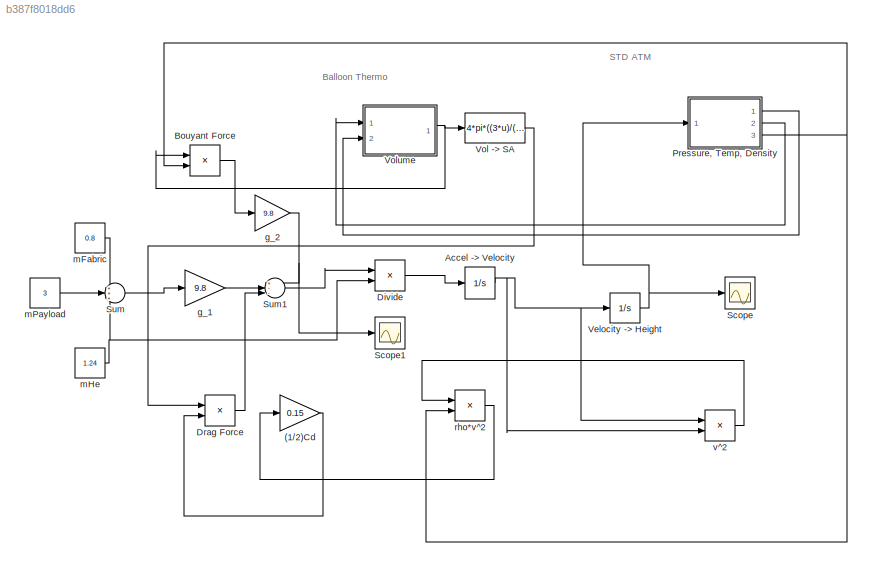
MODEL slx_b387f8018dd6
KIND model
CONFIG AbsTol = auto
CONFIG FixedStep = auto
CONFIG MaxStep = auto
CONFIG MinStep = auto
CONFIG RelTol = 1e-3
CONFIG SampleTimeConstraint = Unconstrained
CONFIG Solver = VariableStepAuto
CONFIG SolverMode = Auto
CONFIG SolverName = VariableStepAuto
CONFIG StartTime = 0.0
CONFIG StopTime = 7200
BLOCK [Gain] (1//2)Cd
  Gain = 0.15
  OutDataTypeStr = Inherit: Inherit via internal rule
  ParamDataTypeStr = Inherit: Inherit via internal rule
  SaturateOnIntegerOverflow = off
BLOCK [Integrator] Accel -> Velocity
  Ports = [1, 1]
BLOCK [Product] Bouyant Force
  InputSameDT = off
  OutDataTypeStr = Inherit: Inherit via internal rule
  Ports = [2, 1]
  RndMeth = Floor
  SaturateOnIntegerOverflow = off
BLOCK [Product] Divide
  InputSameDT = off
  Inputs = */
  OutDataTypeStr = Inherit: Inherit via internal rule
  Ports = [2, 1]
  RndMeth = Floor
  SaturateOnIntegerOverflow = off
BLOCK [Product] Drag Force
  InputSameDT = off
  OutDataTypeStr = Inherit: Inherit via internal rule
  Ports = [2, 1]
  RndMeth = Floor
  SaturateOnIntegerOverflow = off
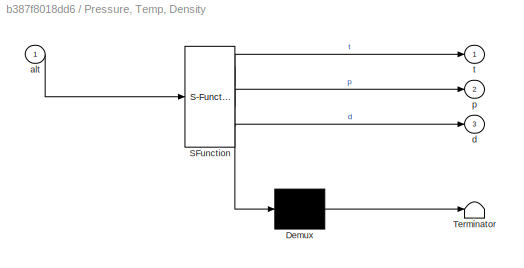
BLOCK [SubSystem] Pressure, Temp, Density
  ErrorFcn = Stateflow.Translate.translate
  PermitHierarchicalResolution = ExplicitOnly
  Ports = [1, 3]
  RequestExecContextInheritance = off
  SFBlockType = MATLAB Function
  TreatAsAtomicUnit = on
  Variant = off
BLOCK [Demux] Pressure, Temp, Density/ Demux 
  Outputs = 1
  Ports = [1, 1]
BLOCK [S-Function] Pressure, Temp, Density/ SFunction 
  EnableBusSupport = on
  FunctionName = sf_sfun
  PortCounts = [1 4]
  Ports = [1, 4]
  SFunctionDeploymentMode = off
  Tag = Stateflow S-Function AltControlSimulink_4_16_17 1
BLOCK [Terminator] Pressure, Temp, Density/ Terminator 
BLOCK [Inport] Pressure, Temp, Density/alt
  IconDisplay = Port number
BLOCK [Outport] Pressure, Temp, Density/d
  IconDisplay = Port number
  Port = 3
BLOCK [Outport] Pressure, Temp, Density/p
  IconDisplay = Port number
  Port = 2
BLOCK [Outport] Pressure, Temp, Density/t
  IconDisplay = Port number
BLOCK [Scope] Scope
  Ports = [1]
  ScopeSpecificationString = Simulink.scopes.TimeScopeBlockCfg('CurrentConfiguration', extmgr.ConfigurationSet(extmgr.Configuration('Core','General UI',true),extmgr.Configuration('Core','Source UI',true),extmgr.Configuration('Sources','WiredSimulink',true,'DataLoggingSaveFormat','Array','DataLoggingDecimation','1','DataLoggingDecimateData',true),extmgr.Configuration('Visuals','Time Domain',true,'SerializedDisplays',{struct('M...<+1455ch>
BLOCK [Scope] Scope1
  Ports = [1]
  ScopeSpecificationString = Simulink.scopes.TimeScopeBlockCfg('CurrentConfiguration', extmgr.ConfigurationSet(extmgr.Configuration('Core','General UI',true),extmgr.Configuration('Core','Source UI',true),extmgr.Configuration('Sources','WiredSimulink',true,'DataLoggingVariableName','ScopeData1'),extmgr.Configuration('Visuals','Time Domain',true,'SerializedDisplays',{struct('MinYLimReal','87.92777','MaxYLimReal','87.94037','YLa...<+1421ch>
BLOCK [Sum] Sum
  IconShape = round
  InputSameDT = off
  Inputs = +++
  OutDataTypeStr = Inherit: Inherit via internal rule
  Ports = [3, 1]
  SaturateOnIntegerOverflow = off
BLOCK [Sum] Sum1
  IconShape = round
  InputSameDT = off
  Inputs = +--
  OutDataTypeStr = Inherit: Inherit via internal rule
  Ports = [3, 1]
  SaturateOnIntegerOverflow = off
BLOCK [Integrator] Velocity -> Height
  Ports = [1, 1]
BLOCK [Fcn] Vol -> SA
  Expr = 4*pi*((3*u)/(4*pi))^(2/3)
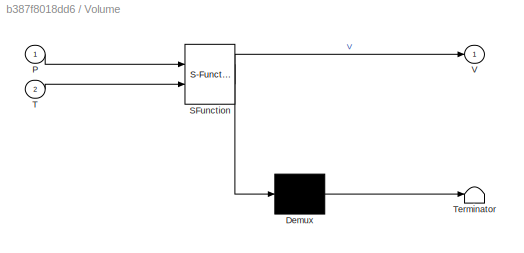
BLOCK [SubSystem] Volume
  ErrorFcn = Stateflow.Translate.translate
  PermitHierarchicalResolution = ExplicitOnly
  Ports = [2, 1]
  RequestExecContextInheritance = off
  SFBlockType = MATLAB Function
  TreatAsAtomicUnit = on
  Variant = off
BLOCK [Demux] Volume/ Demux 
  Outputs = 1
  Ports = [1, 1]
BLOCK [S-Function] Volume/ SFunction 
  EnableBusSupport = on
  FunctionName = sf_sfun
  PortCounts = [2 2]
  Ports = [2, 2]
  SFunctionDeploymentMode = off
  Tag = Stateflow S-Function AltControlSimulink_4_16_17 2
BLOCK [Terminator] Volume/ Terminator 
BLOCK [Inport] Volume/P
  IconDisplay = Port number
BLOCK [Inport] Volume/T
  IconDisplay = Port number
  Port = 2
BLOCK [Outport] Volume/V
  IconDisplay = Port number
BLOCK [Gain] g_1 
  Gain = 9.8
  OutDataTypeStr = Inherit: Inherit via internal rule
  ParamDataTypeStr = Inherit: Inherit via internal rule
  SaturateOnIntegerOverflow = off
BLOCK [Gain] g_2
  Gain = 9.8
  OutDataTypeStr = Inherit: Inherit via internal rule
  ParamDataTypeStr = Inherit: Inherit via internal rule
  SaturateOnIntegerOverflow = off
BLOCK [Constant] mFabric
  Value = 0.8
BLOCK [Constant] mHe
  Value = 1.24
BLOCK [Constant] mPayload
  Value = 3
BLOCK [Product] rho*v^2
  InputSameDT = off
  OutDataTypeStr = Inherit: Inherit via internal rule
  Ports = [2, 1]
  RndMeth = Floor
  SaturateOnIntegerOverflow = off
BLOCK [Product] v^2
  InputSameDT = off
  OutDataTypeStr = Inherit: Inherit via internal rule
  Ports = [2, 1]
  RndMeth = Floor
  SaturateOnIntegerOverflow = off
ANNOTATION (root): Balloon Thermo
ANNOTATION (root): STD ATM
LINE (1//2)Cd:1 -> Drag Force:2
NET Accel -> Velocity:1 -> Velocity -> Height:1, v^2:1, v^2:2
LINE Bouyant Force:1 -> g_2:1
LINE Divide:1 -> Accel -> Velocity:1
LINE Drag Force:1 -> Sum1:3
LINE Pressure, Temp, Density:1 -> Volume:2
LINE Pressure, Temp, Density:2 -> Volume:1
NET Pressure, Temp, Density:3 -> Bouyant Force:2, rho*v^2:2
LINE Sum1:1 -> Divide:1
LINE Sum:1 -> g_1 :1
NET Velocity -> Height:1 -> Pressure, Temp, Density:1, Scope:1
LINE Vol -> SA:1 -> Drag Force:1
NET Volume:1 -> Bouyant Force:1, Vol -> SA:1
LINE g_1 :1 -> Sum1:2
NET g_2:1 -> Scope1:1, Sum1:1
LINE mFabric:1 -> Sum:1
NET mHe:1 -> Divide:2, Sum:3
LINE mPayload:1 -> Sum:2
LINE rho*v^2:1 -> (1//2)Cd:1
LINE v^2:1 -> rho*v^2:1
note: NET lines group one-source signal fan-out (src -> all destinations, sorted); 1:1 wires keep LINE
CHART Pressure, Temp, Density states=1 transitions=1
  STATE_LABEL 'eML_blk_kernel()'
  STATE_LABEL 'SCRIPT:\nfunction [t,p,d] = getTPD(alt)\n    if alt <= 11000\n        t = 15.04 - 0.00649*alt;\n        p = 101.29 * ((t + 273.1)/288.08)^5.256;\n    elseif (11000 < alt) && (alt <= 25000)\n        t = -56.46;\n        p = 22.65 * exp(1.73 - 0.000157*alt);\n    else\n        t = -131.21 + 0.00299*alt;\n        p = 2.488 * ((t + 273.1)/216.6)^(-11.38);\n    end\n    d = p/(0.2869 * (t + 273.1));\nend'
CHART Volume states=1 transitions=1
  STATE_LABEL 'eML_blk_kernel()'
  STATE_LABEL 'SCRIPT:\nfunction V = fcn(P,T)\nmHe = 1.24;\nR = 2.0769;\n\nV = (mHe*R*(T+273))/P;'
